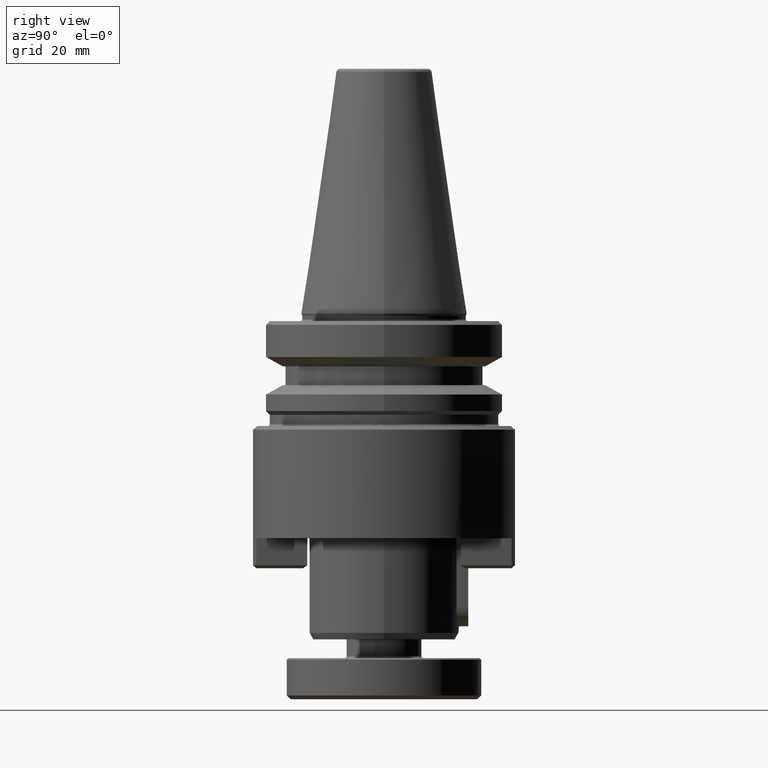
[diagram: clean part render]
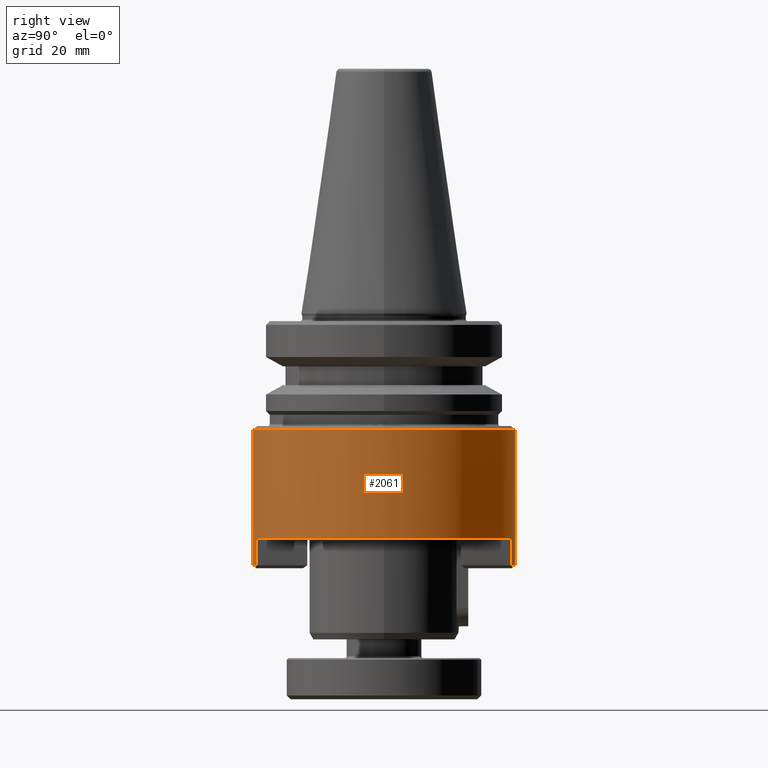
[diagram: same view with one face highlighted and labeled with its STEP entity id]
A machine part, right view. The second image highlights one B-rep face of the part: STEP entity #2061.
In plain terms, the highlighted cylindrical surface (partial cylindrical patch) has radius 35 mm, axis along (0, -0, 1).
Its self-contained STEP definition (entity closure, byte-faithful):
#60 = LINE ( 'NONE', #2545, #3193 ) ;
#70 = VERTEX_POINT ( 'NONE', #2724 ) ;
#121 = DIRECTION ( 'NONE',  ( -1.000000000000000000, 0.0000000000000000000, 0.0000000000000000000 ) ) ;
#214 = CARTESIAN_POINT ( 'NONE',  ( 73.52171165756638500, 61.54903105188329000, 37.49519239629250900 ) ) ;
#223 = FACE_OUTER_BOUND ( 'NONE', #849, .T. ) ;
#308 = CIRCLE ( 'NONE', #2601, 35.00000000000000000 ) ;
#317 = AXIS2_PLACEMENT_3D ( 'NONE', #3087, #818, #2233 ) ;
#319 = ORIENTED_EDGE ( 'NONE', *, *, #2368, .T. ) ;
#328 = AXIS2_PLACEMENT_3D ( 'NONE', #2440, #2435, #2434 ) ;
#333 = EDGE_CURVE ( 'NONE', #70, #713, #3053, .T. ) ;
#353 = VERTEX_POINT ( 'NONE', #2264 ) ;
#378 = LINE ( 'NONE', #214, #2626 ) ;
#584 = CIRCLE ( 'NONE', #1233, 35.00000000000000000 ) ;
#585 = CIRCLE ( 'NONE', #328, 35.00000000000000000 ) ;
#594 = EDGE_CURVE ( 'NONE', #2710, #2338, #2825, .T. ) ;
#713 = VERTEX_POINT ( 'NONE', #1689 ) ;
#752 = EDGE_CURVE ( 'NONE', #353, #1056, #584, .T. ) ;
#758 = ORIENTED_EDGE ( 'NONE', *, *, #333, .T. ) ;
#768 = ORIENTED_EDGE ( 'NONE', *, *, #832, .T. ) ;
#818 = DIRECTION ( 'NONE',  ( 0.0000000000000000000, -2.478176394252581700E-017, 1.000000000000000000 ) ) ;
#832 = EDGE_CURVE ( 'NONE', #1899, #70, #1848, .T. ) ;
#849 = EDGE_LOOP ( 'NONE', ( #955, #2249, #2372, #319, #2886, #768, #758, #2381, #3154 ) ) ;
#955 = ORIENTED_EDGE ( 'NONE', *, *, #2201, .T. ) ;
#976 = EDGE_CURVE ( 'NONE', #1899, #1730, #378, .T. ) ;
#983 = AXIS2_PLACEMENT_3D ( 'NONE', #1444, #3182, #1712 ) ;
#1056 = VERTEX_POINT ( 'NONE', #1068 ) ;
#1068 = CARTESIAN_POINT ( 'NONE',  ( 108.5217116574029000, 96.54903105188329000, 73.69519239645546800 ) ) ;
#1086 = CARTESIAN_POINT ( 'NONE',  ( 81.52171165338201300, 130.6224811276673800, 37.49519239629250900 ) ) ;
#1189 = CARTESIAN_POINT ( 'NONE',  ( 81.52171165547420600, 130.6224811271761700, 44.69519239969250900 ) ) ;
#1233 = AXIS2_PLACEMENT_3D ( 'NONE', #1344, #2395, #121 ) ;
#1316 = EDGE_CURVE ( 'NONE', #713, #2710, #2129, .T. ) ;
#1344 = CARTESIAN_POINT ( 'NONE',  ( 73.52171165756638500, 96.54903105188329000, 73.69519239645546800 ) ) ;
#1444 = CARTESIAN_POINT ( 'NONE',  ( 73.52171165756638500, 96.54903105188329000, 44.69519239969250900 ) ) ;
#1643 = DIRECTION ( 'NONE',  ( -1.000000000000000000, 0.0000000000000000000, 0.0000000000000000000 ) ) ;
#1645 = DIRECTION ( 'NONE',  ( -0.0000000000000000000, -0.0000000000000000000, -1.000000000000000000 ) ) ;
#1650 = CARTESIAN_POINT ( 'NONE',  ( 73.52171165756638500, 96.54903105188329000, 73.69519239645546800 ) ) ;
#1689 = CARTESIAN_POINT ( 'NONE',  ( 81.52171165826743500, 62.47558097741085000, 44.69519239799250700 ) ) ;
#1703 = CARTESIAN_POINT ( 'NONE',  ( 81.52171165547420600, 130.6224811271761700, 37.49519239629250900 ) ) ;
#1712 = DIRECTION ( 'NONE',  ( 0.0000000000000000000, -1.000000000000000000, 0.0000000000000000000 ) ) ;
#1730 = VERTEX_POINT ( 'NONE', #3055 ) ;
#1736 = DIRECTION ( 'NONE',  ( -0.0000000000000000000, 2.478176394252581700E-017, -1.000000000000000000 ) ) ;
#1822 = DIRECTION ( 'NONE',  ( 0.0000000000000000000, -2.478176394252581700E-017, 1.000000000000000000 ) ) ;
#1848 = CIRCLE ( 'NONE', #317, 35.00000000000000000 ) ;
#1899 = VERTEX_POINT ( 'NONE', #2855 ) ;
#2061 = ADVANCED_FACE ( 'NONE', ( #223 ), #3159, .T. ) ;
#2062 = VERTEX_POINT ( 'NONE', #2563 ) ;
#2096 = CARTESIAN_POINT ( 'NONE',  ( 81.52171166037059900, 62.47558097774004400, 37.49519239629250900 ) ) ;
#2102 = EDGE_CURVE ( 'NONE', #2062, #353, #60, .T. ) ;
#2129 = CIRCLE ( 'NONE', #983, 35.00000000000000000 ) ;
#2176 = VECTOR ( 'NONE', #1736, 1000.000000000000000 ) ;
#2201 = EDGE_CURVE ( 'NONE', #2338, #2062, #585, .T. ) ;
#2233 = DIRECTION ( 'NONE',  ( 0.0000000000000000000, -1.000000000000000000, 0.0000000000000000000 ) ) ;
#2249 = ORIENTED_EDGE ( 'NONE', *, *, #2102, .T. ) ;
#2264 = CARTESIAN_POINT ( 'NONE',  ( 73.52171165756638500, 131.5490310518833000, 73.69519239645546800 ) ) ;
#2338 = VERTEX_POINT ( 'NONE', #1703 ) ;
#2368 = EDGE_CURVE ( 'NONE', #1056, #1730, #308, .T. ) ;
#2372 = ORIENTED_EDGE ( 'NONE', *, *, #752, .T. ) ;
#2381 = ORIENTED_EDGE ( 'NONE', *, *, #1316, .T. ) ;
#2395 = DIRECTION ( 'NONE',  ( -0.0000000000000000000, -0.0000000000000000000, -1.000000000000000000 ) ) ;
#2434 = DIRECTION ( 'NONE',  ( 0.0000000000000000000, -1.000000000000000000, 0.0000000000000000000 ) ) ;
#2435 = DIRECTION ( 'NONE',  ( 0.0000000000000000000, -2.478176394252581700E-017, 1.000000000000000000 ) ) ;
#2440 = CARTESIAN_POINT ( 'NONE',  ( 73.52171165756638500, 96.54903105188329000, 37.49519239629250900 ) ) ;
#2538 = DIRECTION ( 'NONE',  ( 0.0000000000000000000, -2.478176394252581700E-017, 1.000000000000000000 ) ) ;
#2545 = CARTESIAN_POINT ( 'NONE',  ( 73.52171165756638500, 131.5490310518833000, 37.49519239629250900 ) ) ;
#2563 = CARTESIAN_POINT ( 'NONE',  ( 73.52171165756638500, 131.5490310518833000, 37.49519239629250900 ) ) ;
#2566 = DIRECTION ( 'NONE',  ( 0.0000000000000000000, -2.478176394252581700E-017, 1.000000000000000000 ) ) ;
#2567 = DIRECTION ( 'NONE',  ( 0.0000000000000000000, -1.000000000000000000, 0.0000000000000000000 ) ) ;
#2601 = AXIS2_PLACEMENT_3D ( 'NONE', #1650, #1645, #1643 ) ;
#2604 = CARTESIAN_POINT ( 'NONE',  ( 73.52171165756638500, 96.54903105188329000, 37.49519239629250900 ) ) ;
#2626 = VECTOR ( 'NONE', #1822, 1000.000000000000000 ) ;
#2710 = VERTEX_POINT ( 'NONE', #1189 ) ;
#2724 = CARTESIAN_POINT ( 'NONE',  ( 81.52171165896848500, 62.47558097741085000, 37.49519239629250900 ) ) ;
#2825 = LINE ( 'NONE', #1086, #2176 ) ;
#2849 = DIRECTION ( 'NONE',  ( 0.0000000000000000000, -2.478176394252581700E-017, 1.000000000000000000 ) ) ;
#2855 = CARTESIAN_POINT ( 'NONE',  ( 73.52171165756638500, 61.54903105188329000, 37.49519239645444900 ) ) ;
#2886 = ORIENTED_EDGE ( 'NONE', *, *, #976, .F. ) ;
#2987 = AXIS2_PLACEMENT_3D ( 'NONE', #2604, #2566, #2567 ) ;
#3053 = LINE ( 'NONE', #2096, #3319 ) ;
#3055 = CARTESIAN_POINT ( 'NONE',  ( 73.52171165756638500, 61.54903105188329000, 73.69519239645546800 ) ) ;
#3087 = CARTESIAN_POINT ( 'NONE',  ( 73.52171165756638500, 96.54903105188329000, 37.49519239645444900 ) ) ;
#3154 = ORIENTED_EDGE ( 'NONE', *, *, #594, .T. ) ;
#3159 = CYLINDRICAL_SURFACE ( 'NONE', #2987, 35.00000000000000000 ) ;
#3182 = DIRECTION ( 'NONE',  ( 0.0000000000000000000, -2.478176394252581700E-017, 1.000000000000000000 ) ) ;
#3193 = VECTOR ( 'NONE', #2538, 1000.000000000000000 ) ;
#3319 = VECTOR ( 'NONE', #2849, 1000.000000000000000 ) ;